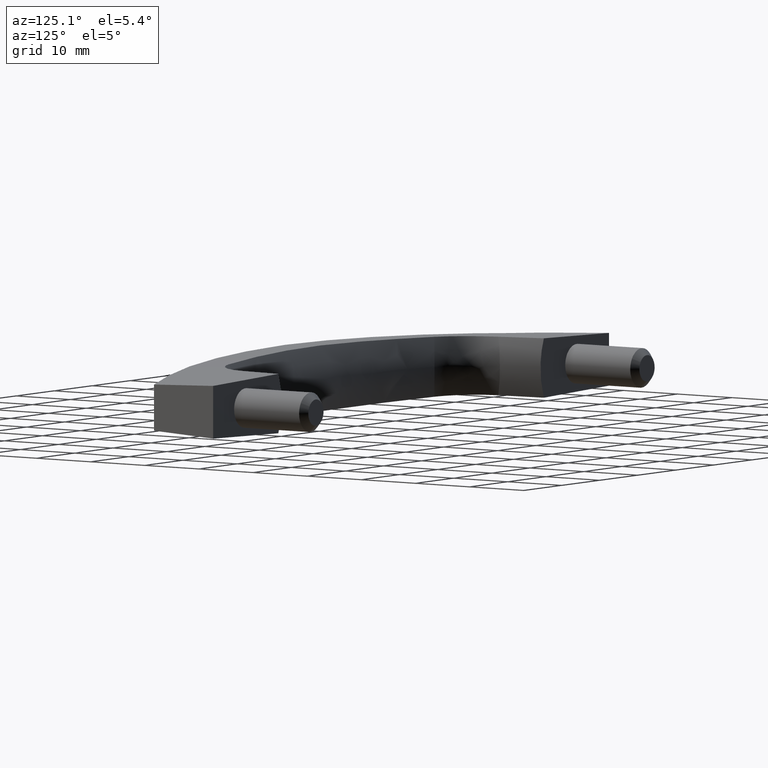
[diagram: clean part render]
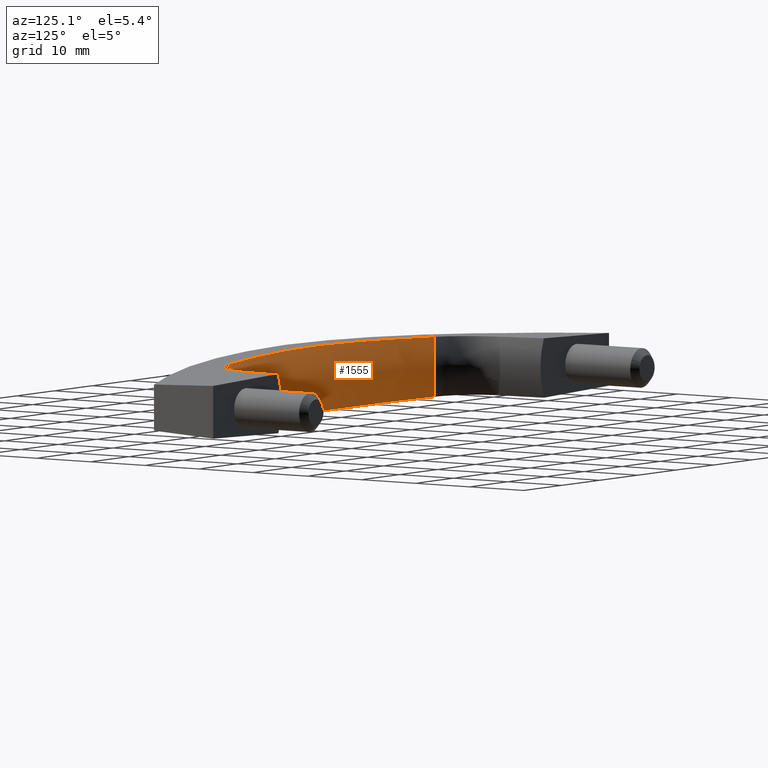
[diagram: same view with one face highlighted and labeled with its STEP entity id]
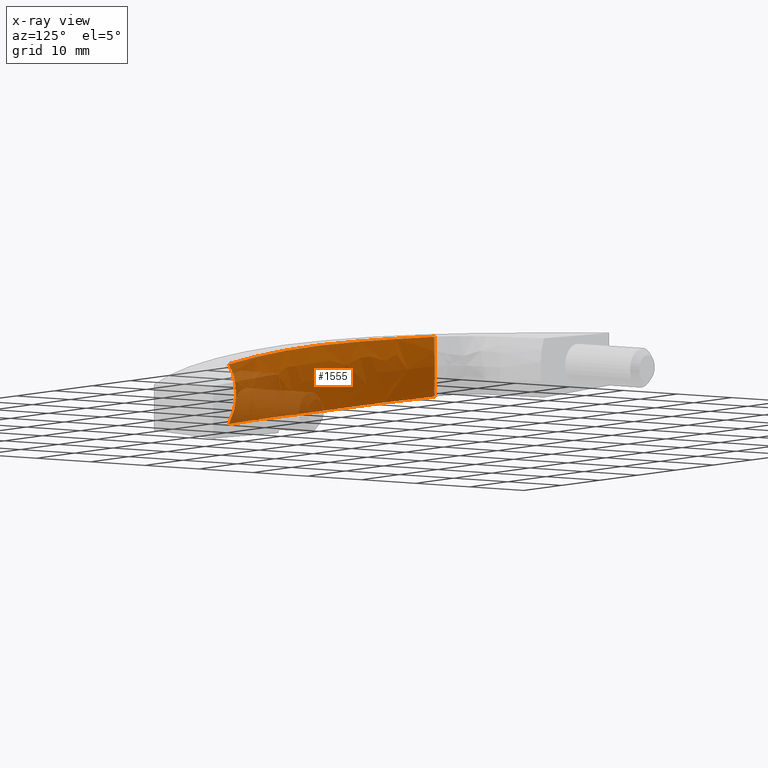
[diagram: x-ray of the same camera — body ghosted, the highlighted face saturated]
A machine part, auxiliary view. The second image highlights one B-rep face of the part: STEP entity #1555.
The next image is the same camera in x-ray: the body ghosted, the highlighted face saturated — about 24% of this face is hidden behind the body in this view.
In plain terms, the highlighted face is a freeform B-spline surface patch.
Its self-contained STEP definition (entity closure, byte-faithful):
#1211=CARTESIAN_POINT('',(27.009089554532100,-4.546304368018769,14.675661039928499));
#1212=VERTEX_POINT('',#1211);
#1246=CARTESIAN_POINT('',(27.009575406474450,4.546287756967490,14.676112830088680));
#1247=VERTEX_POINT('',#1246);
#1248=CARTESIAN_POINT('',(27.009089554532100,-4.546304368018769,14.675661039928499));
#1249=CARTESIAN_POINT('',(26.964179055218288,-4.450347172281273,14.646011829547099));
#1250=CARTESIAN_POINT('',(26.864979882860510,-4.226627941666084,14.579571467653681));
#1251=CARTESIAN_POINT('',(26.721718046315239,-3.869081591181931,14.481395689061930));
#1252=CARTESIAN_POINT('',(26.582688425134680,-3.471931978286776,14.383405687562581));
#1253=CARTESIAN_POINT('',(26.459556530724210,-3.065598360565502,14.294359378042390));
#1254=CARTESIAN_POINT('',(26.352517270849720,-2.650366296677270,14.215001478112431));
#1255=CARTESIAN_POINT('',(26.261640051221860,-2.226649508277417,14.146017852864039));
#1256=CARTESIAN_POINT('',(26.187034963481139,-1.794880396789178,14.088097800514291));
#1257=CARTESIAN_POINT('',(26.128808111740248,-1.355539272521267,14.041914486166160));
#1258=CARTESIAN_POINT('',(26.087074779486102,-0.909153445530551,14.008126345494681));
#1259=CARTESIAN_POINT('',(26.061953328381211,-0.456276230665120,13.987376354488200));
#1260=CARTESIAN_POINT('',(26.050846780153641,0.151990011318556,13.977963086778299));
#1261=CARTESIAN_POINT('',(26.078066689111299,0.907610217819151,14.001019905699341));
#1262=CARTESIAN_POINT('',(26.177628118846901,1.795387490083081,14.081360565550559));
#1263=CARTESIAN_POINT('',(26.342488250337929,2.653012631214859,14.208733029339090));
#1264=CARTESIAN_POINT('',(26.573380789067130,3.475680378679036,14.378265444609189));
#1265=CARTESIAN_POINT('',(26.804518017060062,4.103219962596479,14.540457131768910));
#1266=CARTESIAN_POINT('',(26.964172649794239,4.450824674498636,14.646267825873180));
#1267=CARTESIAN_POINT('',(27.009575406474450,4.546287756967490,14.676112830088680));
#1268=B_SPLINE_CURVE_WITH_KNOTS('',3,(#1248,#1249,#1250,#1251,#1252,#1253,#1254,#1255,#1256,#1257,#1258,#1259,#1260,#1261,#1262,#1263,#1264,#1265,#1266,#1267),.UNSPECIFIED.,.F.,.U.,(4,1,1,1,1,1,1,1,1,1,1,1,1,1,1,1,1,4),(0.050103239127138,0.081376568613500,0.122158677695044,0.163065581745048,0.204142881567825,0.245435184325041,0.286986017140358,0.328837758395382,0.371031586923144,0.413607448845139,0.456604041391796,0.500058812705973,0.586527650965016,0.671301176410026,0.754692940110781,0.837036217047766,0.918682689601447,0.949916614510845),.UNSPECIFIED.);
#1269=EDGE_CURVE('',#1212,#1247,#1268,.T.);
#1363=CARTESIAN_POINT('',(-27.008360715719100,4.546306532687479,14.676013701554300));
#1364=VERTEX_POINT('',#1363);
#1365=CARTESIAN_POINT('',(-27.008377652736950,-4.546313197034349,14.675238799713361));
#1366=VERTEX_POINT('',#1365);
#1367=CARTESIAN_POINT('',(-27.008360715719100,4.546306532687479,14.676013701554300));
#1368=CARTESIAN_POINT('',(-26.963429756904990,4.450344446174991,14.646354865875789));
#1369=CARTESIAN_POINT('',(-26.864189802121771,4.226616911810716,14.579891779196180));
#1370=CARTESIAN_POINT('',(-26.720877646875639,3.869056244990317,14.481676158718630));
#1371=CARTESIAN_POINT('',(-26.581812498251839,3.471892525849171,14.383638027505100));
#1372=CARTESIAN_POINT('',(-26.458662940626599,3.065544519339472,14.294538467551639));
#1373=CARTESIAN_POINT('',(-26.351623908778610,2.650297765183782,14.215122261699941));
#1374=CARTESIAN_POINT('',(-26.260764722364311,2.226566033000540,14.146075413024921));
#1375=CARTESIAN_POINT('',(-26.186195501563301,1.794781755712001,14.088087306117361));
#1376=CARTESIAN_POINT('',(-26.128022077284150,1.355425283599344,14.041831257349051));
#1377=CARTESIAN_POINT('',(-26.086360621883980,0.909023955928431,14.007965574036779));
#1378=CARTESIAN_POINT('',(-26.061326045488169,0.456131157504640,13.987134101215929));
#1379=CARTESIAN_POINT('',(-26.050370038008381,-0.152259123283261,13.977602011265439));
#1380=CARTESIAN_POINT('',(-26.077738666877341,-0.908048334833762,14.000539221913749));
#1381=CARTESIAN_POINT('',(-26.177336149707749,-1.795983603182634,14.080798242524930));
#1382=CARTESIAN_POINT('',(-26.342100946369470,-2.653598505822737,14.208106258313560));
#1383=CARTESIAN_POINT('',(-26.572751531198911,-3.476096177376441,14.377559932895670));
#1384=CARTESIAN_POINT('',(-26.803594982416360,-4.103432054811844,14.539667797320019));
#1385=CARTESIAN_POINT('',(-26.963039227853042,-4.450897477122823,14.645414821368140));
#1386=CARTESIAN_POINT('',(-27.008377652736950,-4.546313197034349,14.675238799713361));
#1387=B_SPLINE_CURVE_WITH_KNOTS('',3,(#1367,#1368,#1369,#1370,#1371,#1372,#1373,#1374,#1375,#1376,#1377,#1378,#1379,#1380,#1381,#1382,#1383,#1384,#1385,#1386),.UNSPECIFIED.,.F.,.U.,(4,1,1,1,1,1,1,1,1,1,1,1,1,1,1,1,1,4),(0.050110610215077,0.081389181643903,0.122176433971505,0.163087857124795,0.204169165598659,0.245465079555151,0.287019237803021,0.328874128533896,0.371071038030582,0.413650017099254,0.456649864567727,0.500108126848652,0.586613560427156,0.671407478870440,0.754802039277942,0.837129240514141,0.918739650726519,0.949955256236547),.UNSPECIFIED.);
#1388=EDGE_CURVE('',#1364,#1366,#1387,.T.);
#1458=CARTESIAN_POINT('',(29.727011835430048,-5.447599572686058,14.410467237952325));
#1459=CARTESIAN_POINT('',(0.000492767194278,-5.447599572686057,22.342183157464763));
#1460=CARTESIAN_POINT('',(-29.726057905860991,-5.447599572686057,14.410585687578337));
#1461=CARTESIAN_POINT('',(29.011457738881425,0.000140993220482,11.728710514532718));
#1462=CARTESIAN_POINT('',(0.000487043889484,0.000140993220481,19.469501744537752));
#1463=CARTESIAN_POINT('',(-29.010514495160940,0.000140993220481,11.728826112952479));
#1464=CARTESIAN_POINT('',(29.727041241332476,5.447823443365133,14.410577445520039));
#1465=CARTESIAN_POINT('',(0.000492767429478,5.447823443365133,22.342301211137791));
#1466=CARTESIAN_POINT('',(-29.726087311324285,5.447823443365133,14.410695895263220));
#1474=(BOUNDED_SURFACE()B_SPLINE_SURFACE(2,2,((#1458,#1461,#1464),(#1459,#1462,#1465),(#1460,#1463,#1466)),.UNSPECIFIED.,.F.,.F.,.U.)B_SPLINE_SURFACE_WITH_KNOTS((3,3),(3,3),(32.489102077484127,93.762255954742429),(3.012154944324494,14.535521142101290),.UNSPECIFIED.)GEOMETRIC_REPRESENTATION_ITEM()RATIONAL_B_SPLINE_SURFACE(((0.884435512878101,0.788046345300562,0.884439958544450),(0.854539478684701,0.761408495347633,0.854543774076903),(0.884435050801541,0.788045933582874,0.884439496465567)))REPRESENTATION_ITEM('')SURFACE());
#1475=ORIENTED_EDGE('',*,*,#1269,.F.);
#1476=CARTESIAN_POINT('',(-27.008377652736950,-4.546313197034349,14.675238799713361));
#1477=CARTESIAN_POINT('',(-25.899796701977440,-4.571566543751206,14.953994877693690));
#1478=CARTESIAN_POINT('',(-24.788668598782159,-4.595627244879835,15.215419685477730));
#1479=CARTESIAN_POINT('',(-22.561480194223179,-4.643959211852359,15.704915063397671));
#1480=CARTESIAN_POINT('',(-21.445417764534891,-4.668203311603066,15.932974530881900));
#1481=CARTESIAN_POINT('',(-19.208500858368851,-4.717391791394741,16.356107426377839));
#1482=CARTESIAN_POINT('',(-18.087645562373989,-4.742318596528675,16.551177497865051));
#1483=CARTESIAN_POINT('',(-15.840958562761751,-4.790431838606868,16.907381153117210));
#1484=CARTESIAN_POINT('',(-14.715126684415839,-4.813619541009553,17.068513374047740));
#1485=CARTESIAN_POINT('',(-12.458393977691969,-4.857233019265557,17.356337955769870));
#1486=CARTESIAN_POINT('',(-11.327494283852630,-4.877675038362074,17.483036007527460));
#1487=CARTESIAN_POINT('',(-9.060603251878495,-4.915810587876536,17.701834728192559));
#1488=CARTESIAN_POINT('',(-7.924621671038553,-4.933616511984782,17.793987865775950));
#1489=CARTESIAN_POINT('',(-6.216664109553314,-4.956621099685848,17.905338993996232));
#1490=CARTESIAN_POINT('',(-5.361688207286917,-4.967190710726940,17.954290110543369));
#1491=CARTESIAN_POINT('',(-4.505176746368764,-4.975979318889094,17.992930137857449));
#1492=CARTESIAN_POINT('',(-3.933823112313333,-4.981398099187606,18.016371886988878));
#1493=CARTESIAN_POINT('',(-3.647870300290371,-4.983888197943101,18.026936853050650));
#1494=CARTESIAN_POINT('',(-2.218706936814911,-4.995115101427983,18.073851987114018));
#1495=CARTESIAN_POINT('',(-1.077544628688022,-5.000178908683247,18.092481953301590));
#1496=CARTESIAN_POINT('',(2.339242657090383,-4.999619567117920,18.090440792310300));
#1497=CARTESIAN_POINT('',(4.608192921907856,-4.978529332522924,18.012025075905392));
#1498=CARTESIAN_POINT('',(7.999564492242099,-4.932488657893398,17.788374425192760));
#1499=CARTESIAN_POINT('',(9.128010718768822,-4.914732089308144,17.696136330653552));
#1500=CARTESIAN_POINT('',(11.381048968042791,-4.876731800085692,17.477484468708290));
#1501=CARTESIAN_POINT('',(12.505632622737320,-4.856361510126264,17.351012145187060));
#1502=CARTESIAN_POINT('',(14.750936524905860,-4.812902042493668,17.063839370280729));
#1503=CARTESIAN_POINT('',(15.871655896561951,-4.789796696331279,16.903133167487361));
#1504=CARTESIAN_POINT('',(18.109288482204722,-4.741850664235696,16.547878054762499));
#1505=CARTESIAN_POINT('',(19.226201870745768,-4.717009530534235,16.353330764980349));
#1506=CARTESIAN_POINT('',(21.456351237395840,-4.667973075437248,15.931238387209270));
#1507=CARTESIAN_POINT('',(22.569587637947620,-4.643791253484179,15.703695337329890));
#1508=CARTESIAN_POINT('',(24.792233348947800,-4.595557009415674,15.215127295955220));
#1509=CARTESIAN_POINT('',(25.901644392799948,-4.571532195584390,14.954114254621190));
#1510=CARTESIAN_POINT('',(27.009089554532100,-4.546304368018769,14.675661039928499));
#1511=B_SPLINE_CURVE_WITH_KNOTS('',3,(#1476,#1477,#1478,#1479,#1480,#1481,#1482,#1483,#1484,#1485,#1486,#1487,#1488,#1489,#1490,#1491,#1492,#1493,#1494,#1495,#1496,#1497,#1498,#1499,#1500,#1501,#1502,#1503,#1504,#1505,#1506,#1507,#1508,#1509,#1510),.UNSPECIFIED.,.F.,.U.,(4,2,2,2,2,2,2,1,2,2,2,2,2,2,2,2,2,4),(0.000004202226967,0.062500000000000,0.125000000000000,0.187500000000000,0.250000000000000,0.312500000000000,0.375000000000000,0.406250000000000,0.421875000000000,0.437500000000000,0.500000000000000,0.625000000000000,0.687500000000000,0.750000000000000,0.812500000000000,0.875000000000000,0.937500000000000,0.999995163624814),.UNSPECIFIED.);
#1512=EDGE_CURVE('',#1366,#1212,#1511,.T.);
#1513=ORIENTED_EDGE('',*,*,#1512,.F.);
#1514=ORIENTED_EDGE('',*,*,#1388,.F.);
#1515=CARTESIAN_POINT('',(27.009575406474450,4.546287756967490,14.676112830088680));
#1516=CARTESIAN_POINT('',(25.901044904262118,4.571540404280778,14.954844897927391));
#1517=CARTESIAN_POINT('',(24.789967372933649,4.595600238889582,15.216247311574900));
#1518=CARTESIAN_POINT('',(22.562814489052599,4.643931637986294,15.705715590281709));
#1519=CARTESIAN_POINT('',(21.446736720589609,4.668176046358387,15.933768377878099));
#1520=CARTESIAN_POINT('',(19.209788843600990,4.717365210588707,16.356887305959589));
#1521=CARTESIAN_POINT('',(18.088917929078669,4.742292560778867,16.551950161077588));
#1522=CARTESIAN_POINT('',(15.842199415116699,4.790407227158206,16.908138899640552));
#1523=CARTESIAN_POINT('',(14.716351637445531,4.813595765146322,17.069263401897061));
#1524=CARTESIAN_POINT('',(12.459586825539400,4.857210931934639,17.357071927357499));
#1525=CARTESIAN_POINT('',(11.328670925890121,4.877653804396246,17.483761641501101));
#1526=CARTESIAN_POINT('',(9.061747163885697,4.915790961105074,17.702543008300161));
#1527=CARTESIAN_POINT('',(7.925749071825529,4.933597791181395,17.794687196619709));
#1528=CARTESIAN_POINT('',(6.217766523484789,4.956603975713355,17.906024525662531));
#1529=CARTESIAN_POINT('',(5.362778072084945,4.967174436771764,17.954968645242310));
#1530=CARTESIAN_POINT('',(4.506253976189444,4.975963966930590,17.993601525370160));
#1531=CARTESIAN_POINT('',(3.934891899437448,4.981383377021070,18.017038475664101));
#1532=CARTESIAN_POINT('',(3.648934845679842,4.983873798372072,18.027601024383699));
#1533=CARTESIAN_POINT('',(2.219750939243214,4.995102343867256,18.074503977993789));
#1534=CARTESIAN_POINT('',(1.078572123538454,5.000167588434878,18.093123987217162));
#1535=CARTESIAN_POINT('',(-2.338264897180855,4.999612705352152,18.091052207483560));
#1536=CARTESIAN_POINT('',(-4.607248518339269,4.978524395817349,18.012614506466939));
#1537=CARTESIAN_POINT('',(-7.998670397941461,4.932485534043104,17.788928733561772));
#1538=CARTESIAN_POINT('',(-9.127133439326837,4.914729377296653,17.696678568845321));
#1539=CARTESIAN_POINT('',(-11.380205414046911,4.876729725290596,17.478001928595170));
#1540=CARTESIAN_POINT('',(-12.504805984964911,4.856359743754996,17.351516933499049));
#1541=CARTESIAN_POINT('',(-14.750143820973021,4.812900803587043,17.064318212262059));
#1542=CARTESIAN_POINT('',(-15.870880210222939,4.789795675567526,16.903598734300161));
#1543=CARTESIAN_POINT('',(-18.108546924233231,4.741849913987877,16.548316425988329));
#1544=CARTESIAN_POINT('',(-19.225477422419541,4.717008814316576,16.353755208124738));
#1545=CARTESIAN_POINT('',(-21.455661096291440,4.667972282925362,15.931634327549180));
#1546=CARTESIAN_POINT('',(-22.568914698590081,4.643790418772426,15.704076731631400));
#1547=CARTESIAN_POINT('',(-24.791553081376168,4.595557079956453,15.215488223707350));
#1548=CARTESIAN_POINT('',(-25.900939735948530,4.571533207694271,14.954470522490830));
#1549=CARTESIAN_POINT('',(-27.008360715719100,4.546306532687479,14.676013701554300));
#1550=B_SPLINE_CURVE_WITH_KNOTS('',3,(#1515,#1516,#1517,#1518,#1519,#1520,#1521,#1522,#1523,#1524,#1525,#1526,#1527,#1528,#1529,#1530,#1531,#1532,#1533,#1534,#1535,#1536,#1537,#1538,#1539,#1540,#1541,#1542,#1543,#1544,#1545,#1546,#1547,#1548,#1549),.UNSPECIFIED.,.F.,.U.,(4,2,2,2,2,2,2,1,2,2,2,2,2,2,2,2,2,4),(0.000007899330929,0.062500000000000,0.125000000000000,0.187500000000000,0.250000000000000,0.312500000000000,0.375000000000000,0.406250000000000,0.421875000000000,0.437500000000000,0.500000000000000,0.625000000000000,0.687500000000000,0.750000000000000,0.812500000000000,0.875000000000000,0.937500000000000,0.999992811110389),.UNSPECIFIED.);
#1551=EDGE_CURVE('',#1247,#1364,#1550,.T.);
#1552=ORIENTED_EDGE('',*,*,#1551,.F.);
#1553=EDGE_LOOP('',(#1475,#1513,#1514,#1552));
#1554=FACE_OUTER_BOUND('',#1553,.T.);
#1555=ADVANCED_FACE('',(#1554),#1474,.T.);